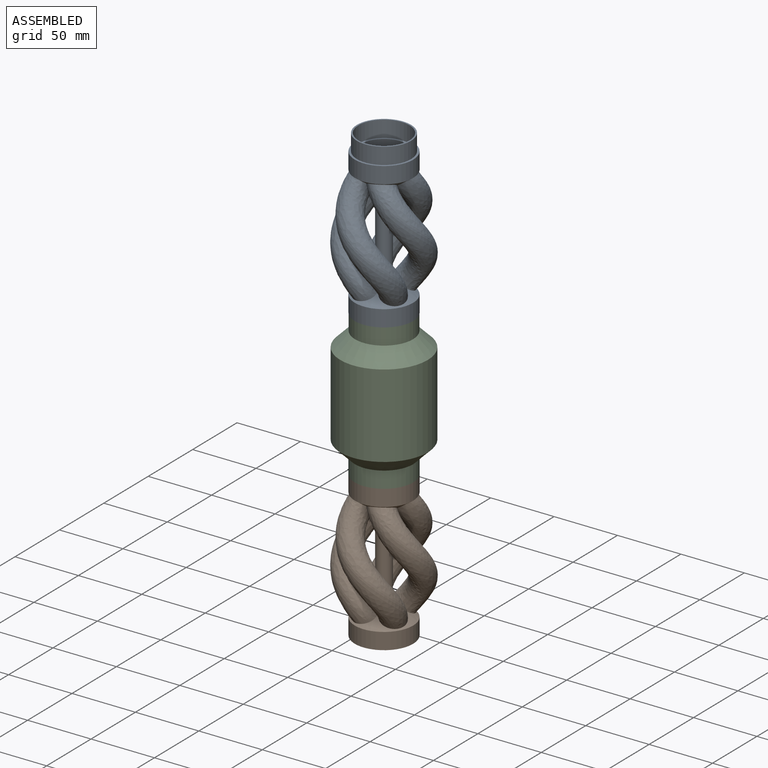
[diagram: assembled view]
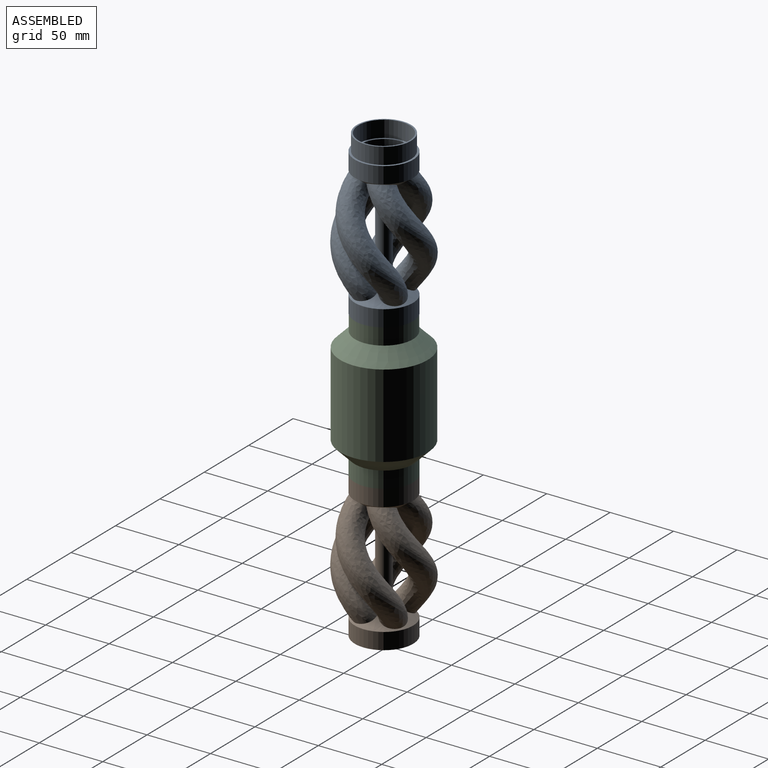
[diagram: assembled view, second angle]
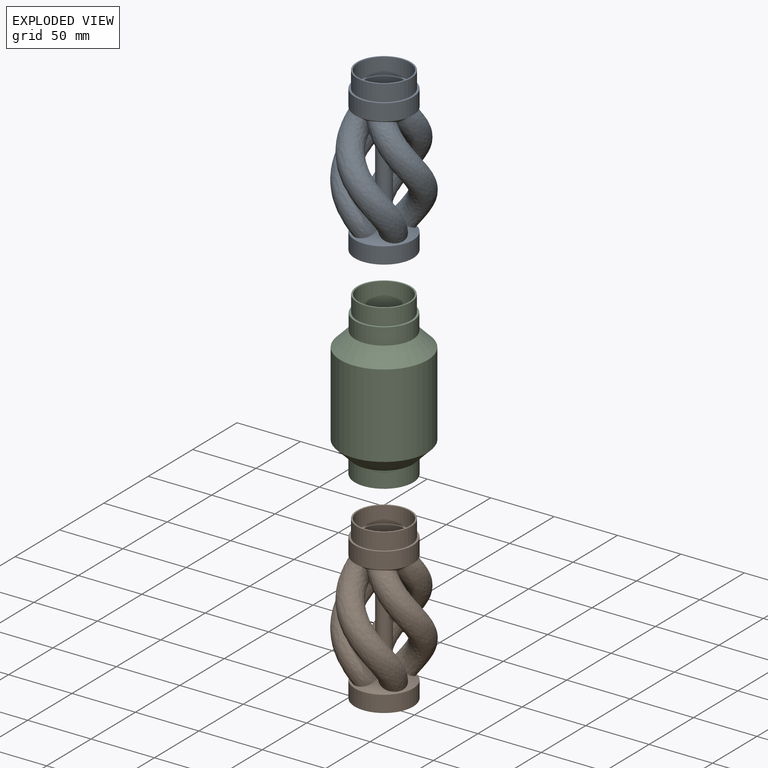
[diagram: exploded view]
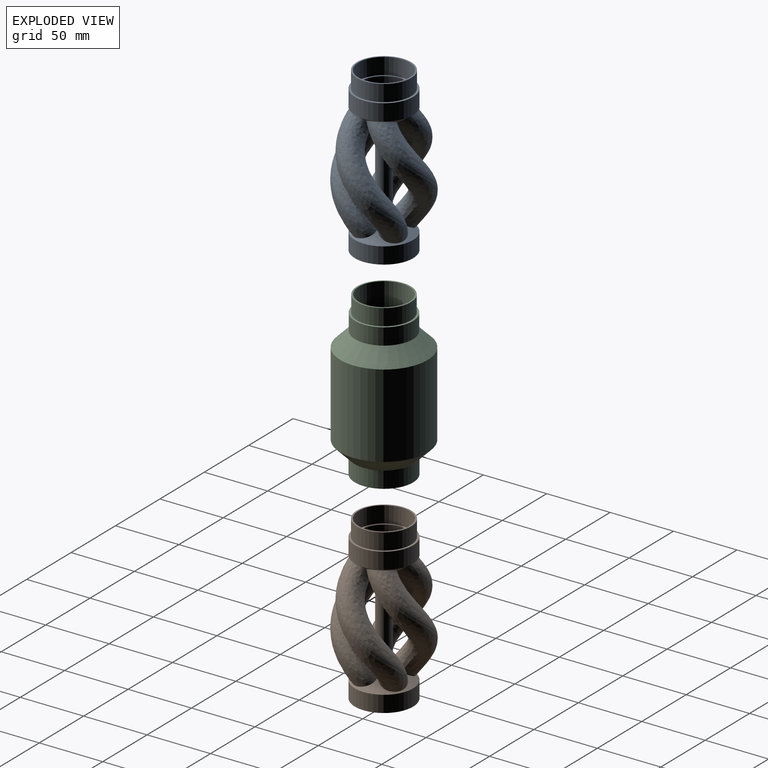
[diagram: exploded view, second angle]
ASSEMBLY  parts=3 mates=2
PART A: 39 faces, bbox 74.5x74.5x129.9 mm
  f0: cylinder r=23mm len=46mm, axis (0,0,-1), area 1878.7mm2, adj f1,f37
  f1: cone r=23mm half-angle=55deg, axis (0,0,-1), area 694.4mm2, adj f0,f2,f33,f34,f35,f36
  f2: bspline ~94.62x46.71mm, area 5847.7mm2, adj f1,f3
  f3: cone r=23mm half-angle=55deg, axis (0,0,1), area 689.9mm2, adj f2,f4,f33,f34,f35,f36
  f4: cylinder r=23mm len=46mm, axis (0,0,-1), area 1878.7mm2, adj f3,f5
  f5: plane 46x46mm, normal (0,0,1), area 229.9mm2, adj f4,f6
  f6: cylinder r=21.35mm len=42.7mm, axis (0,0,-1), area 1743.9mm2, adj f5,f7
  f7: plane 42.7x42.7mm, normal (0,0,1), area 156.5mm2, adj f6,f8
  f8: cylinder r=20.15mm len=40.3mm, axis (0,0,-1), area 1645.9mm2, adj f7,f9
  f9: plane 40.3x40.3mm, normal (0,0,1), area 200.3mm2, adj f8,f10
  f10: cylinder r=18.5mm len=37mm, axis (0,0,-1), area 976.3mm2, adj f9,f11
  f11: cone r=18.5mm half-angle=55deg, axis (0,0,1), area -110.8mm2, adj f10,f12,f26,f27,f28,f29,f30,f31
  f12: bspline ~100.48x42.74mm, area 5137.9mm2, adj f11,f13,f15,f23,f24,f25,f26,f32
  f13: cone r=18.5mm half-angle=55deg, axis (0,0,1), area 95.8mm2, adj f12,f14,f26,f27,f28,f29,f31,f32
  f14: cylinder r=1.25mm len=74.05mm, axis (0,0,-1), area 581.6mm2, adj f13,f24
  f15: cone r=18.5mm half-angle=55deg, axis (0,0,-1), area 302.3mm2, adj f12,f16,f17,f18,f23,f25,f28,f31
  f16: bspline ~23.72x20.38mm, area 19.5mm2, adj f15,f24,f28,f38
  f17: bspline ~33.5x33.5mm, area 21.4mm2, adj f15,f24,f28,f31
  f18: cylinder r=18.5mm len=37mm, axis (0,0,-1), area 976.3mm2, adj f15,f19
  f19: plane 40x40mm, normal (0,0,-1), area 181.4mm2, adj f18,f20
  f20: cylinder r=20mm len=40mm, axis (0,0,-1), area 1633.6mm2, adj f19,f21
  f21: plane 43x43mm, normal (0,0,-1), area 195.6mm2, adj f20,f22
  f22: cylinder r=21.5mm len=43mm, axis (0,0,-1), area 1756.2mm2, adj f21,f37
  f23: bspline ~23.72x20.38mm, area 19.5mm2, adj f12,f15,f24,f38
  f24: cone r=18.5mm half-angle=55deg, axis (0,0,-1), area 92mm2, adj f12,f14,f16,f17,f23,f25,f28,f31
  f25: bspline ~33.5x33.5mm, area 21.4mm2, adj f12,f15,f24,f31
  f26: bspline ~33.5x33.5mm, area 21.4mm2, adj f11,f12,f13,f38
  f27: bspline ~33.5x33.5mm, area 21.4mm2, adj f11,f13,f28,f38
  f28: bspline ~100.61x42.73mm, area 5229.7mm2, adj f11,f13,f15,f16,f17,f24,f27,f29
  f29: bspline ~23.72x20.38mm, area 19.5mm2, adj f11,f13,f28,f31
  f30: bspline ~15.12x14.93mm, area 96.9mm2, adj f11
  f31: bspline ~100.53x42.73mm, area 5196.7mm2, adj f11,f13,f15,f17,f24,f25,f29,f32
  f32: bspline ~23.72x20.38mm, area 19.5mm2, adj f11,f12,f13,f31
  f33: bspline ~94.62x46.71mm, area 5847.7mm2, adj f1,f3
  f34: bspline ~94.62x46.71mm, area 5847.7mm2, adj f1,f3
  f35: cylinder r=5.75mm len=64.84mm, axis (0,0,-1), area 2342.7mm2, adj f1,f3
  f36: bspline ~94.62x46.71mm, area 5847.7mm2, adj f1,f3
  f37: plane 46x46mm, normal (0,0,-1), area 209.7mm2, adj f0,f22
  f38: bspline ~100.59x42.73mm, area 5150.4mm2, adj f11,f13,f15,f16,f23,f24,f26,f27
PART B: same geometry as A
PART C: 206 faces, bbox 69x69x128 mm
  f0: cone r=23mm half-angle=45deg, axis (0,0,1), area 2937.9mm2, adj f2,f201
  f1: cone r=21.5mm half-angle=45deg, axis (0,0,1), area 2354.7mm2, adj f10,f198
  f2: cylinder r=34.5mm len=69mm, axis (0,0,1), area 14274.3mm2, adj f0,f3
  f3: cone r=22.85mm half-angle=45deg, axis (0,0,-1), area 2968.4mm2, adj f2,f4
  f4: cylinder r=22.85mm len=45.7mm, axis (0,0,1), area 1866.4mm2, adj f3,f5
  f5: plane 45.7x45.7mm, normal (0,0,1), area 228.3mm2, adj f4,f6
  f6: cylinder r=21.2mm len=42.4mm, axis (0,0,1), area 1731.6mm2, adj f5,f7
  f7: plane 42.4x42.4mm, normal (0,0,1), area 155.3mm2, adj f6,f8
  f8: cylinder r=20mm len=40mm, axis (0,0,1), area 3267.3mm2, adj f7,f9
  f9: cone r=20mm half-angle=45deg, axis (0,0,-1), area 2631.3mm2, adj f8,f10
  f10: cylinder r=31.5mm len=66mm, axis (0,0,1), area 13062.7mm2, adj f1,f9
  f11: cone r=9.97mm half-angle=45deg, axis (0,0,1), area 119.7mm2, adj f12,f14
  f12: cylinder r=9.97mm len=60.19mm, axis (0,0,1), area 3770.8mm2, adj f11,f13
  f13: cone r=18.06mm half-angle=45deg, axis (0,0,-1), area 1007.4mm2, adj f12,f194
  f14: plane 22.48x22.48mm, normal (0,0,1), area 183.6mm2, adj f11,f15
  f15: cone r=6.97mm half-angle=45deg, axis (0,0,1), area 85.8mm2, adj f14,f16
  f16: cylinder r=6.97mm len=60.19mm, axis (0,0,1), area 2636.3mm2, adj f15,f17
  f17: cone r=17mm half-angle=45deg, axis (0,0,-1), area 1068.1mm2, adj f16,f205
  f18: sphere r=18.06mm, area 2049.3mm2, adj f194
  f19: cylinder r=1.5mm len=4.19mm, axis (0.54,-0.84,0), area 28.3mm2, adj f194,f197
  f20: cylinder r=1.5mm len=4.19mm, axis (0.54,-0.84,0), area 28.3mm2, adj f194,f197
  f21: cylinder r=1.5mm len=4.19mm, axis (0.54,-0.84,0), area 28.3mm2, adj f194,f197
  f22: cylinder r=1.5mm len=4.19mm, axis (0.54,-0.84,0), area 28.3mm2, adj f194,f197
  f23: cylinder r=1.5mm len=4.19mm, axis (0.54,-0.84,0), area 28.3mm2, adj f194,f197
  f24: cylinder r=1.5mm len=4.19mm, axis (0.54,-0.84,0), area 28.3mm2, adj f194,f197
  f25: cylinder r=1.5mm len=4.19mm, axis (0.54,-0.84,0), area 28.3mm2, adj f194,f197
  f26: cylinder r=1.5mm len=4.19mm, axis (0.54,-0.84,0), area 28.3mm2, adj f194,f197
  f27: cylinder r=1.5mm len=4.19mm, axis (0.54,-0.84,0), area 28.3mm2, adj f194,f197
  f28: cylinder r=1.5mm len=4.19mm, axis (0.54,-0.84,0), area 28.3mm2, adj f194,f197
  f29: cylinder r=1.5mm len=3.98mm, axis (-0.38,0.92,0), area 28.3mm2, adj f194,f197
  f30: cylinder r=1.5mm len=3.98mm, axis (-0.38,0.92,0), area 28.3mm2, adj f194,f197
  f31: cylinder r=1.5mm len=3.98mm, axis (-0.38,0.92,0), area 28.3mm2, adj f194,f197
  f32: cylinder r=1.5mm len=3.98mm, axis (-0.38,0.92,0), area 28.3mm2, adj f194,f197
  f33: cylinder r=1.5mm len=3.98mm, axis (-0.38,0.92,0), area 28.3mm2, adj f194,f197
  f34: cylinder r=1.5mm len=3.98mm, axis (-0.38,0.92,0), area 28.3mm2, adj f194,f197
  f35: cylinder r=1.5mm len=3.98mm, axis (-0.38,0.92,0), area 28.3mm2, adj f194,f197
  f36: cylinder r=1.5mm len=3.98mm, axis (-0.38,0.92,0), area 28.3mm2, adj f194,f197
  f37: cylinder r=1.5mm len=3.98mm, axis (-0.38,0.92,0), area 28.3mm2, adj f194,f197
  f38: cylinder r=1.5mm len=3.98mm, axis (-0.38,0.92,0), area 28.3mm2, adj f194,f197
  f39: cylinder r=1.5mm len=3.98mm, axis (-0.38,0.92,0), area 28.3mm2, adj f194,f197
  f40: cylinder r=1.5mm len=3.98mm, axis (-0.38,0.92,0), area 28.3mm2, adj f194,f197
  f41: cylinder r=1.5mm len=4.23mm, axis (0.82,-0.57,0), area 28.3mm2, adj f194,f197
  f42: cylinder r=1.5mm len=4.23mm, axis (0.82,-0.57,0), area 28.3mm2, adj f194,f197
  f43: cylinder r=1.5mm len=4.23mm, axis (0.82,-0.57,0), area 28.3mm2, adj f194,f197
  f44: cylinder r=1.5mm len=4.23mm, axis (0.82,-0.57,0), area 28.3mm2, adj f194,f197
  f45: cylinder r=1.5mm len=4.23mm, axis (0.82,-0.57,0), area 28.3mm2, adj f194,f197
  f46: cylinder r=1.5mm len=4.23mm, axis (0.82,-0.57,0), area 28.3mm2, adj f194,f197
  f47: cylinder r=1.5mm len=4.23mm, axis (0.82,-0.57,0), area 28.3mm2, adj f194,f197
  f48: cylinder r=1.5mm len=4.23mm, axis (0.82,-0.57,0), area 28.3mm2, adj f194,f197
  f49: cylinder r=1.5mm len=4.23mm, axis (0.82,-0.57,0), area 28.3mm2, adj f194,f197
  f50: cylinder r=1.5mm len=4.23mm, axis (0.82,-0.57,0), area 28.3mm2, adj f194,f197
  f51: cylinder r=1.5mm len=4.29mm, axis (-0.71,0.71,0), area 28.3mm2, adj f194,f197
  f52: cylinder r=1.5mm len=4.29mm, axis (-0.71,0.71,0), area 28.3mm2, adj f194,f197
  f53: cylinder r=1.5mm len=4.29mm, axis (-0.71,0.71,0), area 28.3mm2, adj f194,f197
  f54: cylinder r=1.5mm len=4.29mm, axis (-0.71,0.71,0), area 28.3mm2, adj f194,f197
  f55: cylinder r=1.5mm len=4.29mm, axis (-0.71,0.71,0), area 28.3mm2, adj f194,f197
  f56: cylinder r=1.5mm len=4.29mm, axis (-0.71,0.71,0), area 28.3mm2, adj f194,f197
  f57: cylinder r=1.5mm len=4.29mm, axis (-0.71,0.71,0), area 28.3mm2, adj f194,f197
  f58: cylinder r=1.5mm len=4.29mm, axis (-0.71,0.71,0), area 28.3mm2, adj f194,f197
  f59: cylinder r=1.5mm len=4.29mm, axis (-0.71,0.71,0), area 28.3mm2, adj f194,f197
  f60: cylinder r=1.5mm len=4.29mm, axis (-0.71,0.71,0), area 28.3mm2, adj f194,f197
  f61: cylinder r=1.5mm len=4.29mm, axis (-0.71,0.71,0), area 28.3mm2, adj f194,f197
  f62: cylinder r=1.5mm len=4.29mm, axis (-0.71,0.71,0), area 28.3mm2, adj f194,f197
  f63: cylinder r=1.5mm len=3.64mm, axis (0.98,-0.22,0), area 28.3mm2, adj f194,f197
  f64: cylinder r=1.5mm len=3.64mm, axis (0.98,-0.22,0), area 28.3mm2, adj f194,f197
  f65: cylinder r=1.5mm len=3.64mm, axis (0.98,-0.22,0), area 28.3mm2, adj f194,f197
  f66: cylinder r=1.5mm len=3.64mm, axis (0.98,-0.22,0), area 28.3mm2, adj f194,f197
  f67: cylinder r=1.5mm len=3.64mm, axis (0.98,-0.22,0), area 28.3mm2, adj f194,f197
  f68: cylinder r=1.5mm len=3.64mm, axis (0.98,-0.22,0), area 28.3mm2, adj f194,f197
  f69: cylinder r=1.5mm len=3.64mm, axis (0.98,-0.22,0), area 28.3mm2, adj f194,f197
  f70: cylinder r=1.5mm len=3.64mm, axis (0.98,-0.22,0), area 28.3mm2, adj f194,f197
  f71: cylinder r=1.5mm len=3.64mm, axis (0.98,-0.22,0), area 28.3mm2, adj f194,f197
  f72: cylinder r=1.5mm len=3.64mm, axis (0.98,-0.22,0), area 28.3mm2, adj f194,f197
  f73: cylinder r=1.5mm len=3.98mm, axis (-0.92,0.38,0), area 28.3mm2, adj f194,f197
  f74: cylinder r=1.5mm len=3.98mm, axis (-0.92,0.38,0), area 28.3mm2, adj f194,f197
  f75: cylinder r=1.5mm len=3.98mm, axis (-0.92,0.38,0), area 28.3mm2, adj f194,f197
  f76: cylinder r=1.5mm len=3.98mm, axis (-0.92,0.38,0), area 28.3mm2, adj f194,f197
  f77: cylinder r=1.5mm len=3.98mm, axis (-0.92,0.38,0), area 28.3mm2, adj f194,f197
  f78: cylinder r=1.5mm len=3.98mm, axis (-0.92,0.38,0), area 28.3mm2, adj f194,f197
  f79: cylinder r=1.5mm len=3.98mm, axis (-0.92,0.38,0), area 28.3mm2, adj f194,f197
  f80: cylinder r=1.5mm len=3.98mm, axis (-0.92,0.38,0), area 28.3mm2, adj f194,f197
  f81: cylinder r=1.5mm len=3.98mm, axis (-0.92,0.38,0), area 28.3mm2, adj f194,f197
  f82: cylinder r=1.5mm len=3.98mm, axis (-0.92,0.38,0), area 28.3mm2, adj f194,f197
  f83: cylinder r=1.5mm len=3.98mm, axis (-0.92,0.38,0), area 28.3mm2, adj f194,f197
  f84: cylinder r=1.5mm len=3.98mm, axis (-0.92,0.38,0), area 28.3mm2, adj f194,f197
  f85: cylinder r=1.5mm len=3.54mm, axis (0.98,0.17,0), area 28.3mm2, adj f194,f197
  f86: cylinder r=1.5mm len=3.54mm, axis (0.98,0.17,0), area 28.3mm2, adj f194,f197
  f87: cylinder r=1.5mm len=3.54mm, axis (0.98,0.17,0), area 28.3mm2, adj f194,f197
  f88: cylinder r=1.5mm len=3.54mm, axis (0.98,0.17,0), area 28.3mm2, adj f194,f197
  f89: cylinder r=1.5mm len=3.54mm, axis (0.98,0.17,0), area 28.3mm2, adj f194,f197
  f90: cylinder r=1.5mm len=3.54mm, axis (0.98,0.17,0), area 28.3mm2, adj f194,f197
  f91: cylinder r=1.5mm len=3.54mm, axis (0.98,0.17,0), area 28.3mm2, adj f194,f197
  f92: cylinder r=1.5mm len=3.54mm, axis (0.98,0.17,0), area 28.3mm2, adj f194,f197
  f93: cylinder r=1.5mm len=3.54mm, axis (0.98,0.17,0), area 28.3mm2, adj f194,f197
  f94: cylinder r=1.5mm len=3.54mm, axis (0.98,0.17,0), area 28.3mm2, adj f194,f197
  f95: cylinder r=1.5mm len=3.06mm, axis (-1,0,0), area 28.3mm2, adj f194,f197
  f96: cylinder r=1.5mm len=3.06mm, axis (-1,0,0), area 28.3mm2, adj f194,f197
  f97: cylinder r=1.5mm len=3.06mm, axis (-1,0,0), area 28.3mm2, adj f194,f197
  f98: cylinder r=1.5mm len=3.06mm, axis (-1,0,0), area 28.3mm2, adj f194,f197
  f99: cylinder r=1.5mm len=3.06mm, axis (-1,0,0), area 28.3mm2, adj f194,f197
  f100: cylinder r=1.5mm len=3.06mm, axis (-1,0,0), area 28.3mm2, adj f194,f197
  f101: cylinder r=1.5mm len=3.06mm, axis (-1,0,0), area 28.3mm2, adj f194,f197
  f102: cylinder r=1.5mm len=3.06mm, axis (-1,0,0), area 28.3mm2, adj f194,f197
  f103: cylinder r=1.5mm len=3.06mm, axis (-1,0,0), area 28.3mm2, adj f194,f197
  f104: cylinder r=1.5mm len=3.06mm, axis (-1,0,0), area 28.3mm2, adj f194,f197
  f105: cylinder r=1.5mm len=3.06mm, axis (-1,0,0), area 28.3mm2, adj f194,f197
  f106: cylinder r=1.5mm len=3.06mm, axis (-1,0,0), area 28.3mm2, adj f194,f197
  f107: cylinder r=1.5mm len=4.19mm, axis (0.84,0.54,0), area 28.3mm2, adj f194,f197
  f108: cylinder r=1.5mm len=4.19mm, axis (0.84,0.54,0), area 28.3mm2, adj f194,f197
  f109: cylinder r=1.5mm len=4.19mm, axis (0.84,0.54,0), area 28.3mm2, adj f194,f197
  f110: cylinder r=1.5mm len=4.19mm, axis (0.84,0.54,0), area 28.3mm2, adj f194,f197
  f111: cylinder r=1.5mm len=4.19mm, axis (0.84,0.54,0), area 28.3mm2, adj f194,f197
  f112: cylinder r=1.5mm len=4.19mm, axis (0.84,0.54,0), area 28.3mm2, adj f194,f197
  f113: cylinder r=1.5mm len=4.19mm, axis (0.84,0.54,0), area 28.3mm2, adj f194,f197
  f114: cylinder r=1.5mm len=4.19mm, axis (0.84,0.54,0), area 28.3mm2, adj f194,f197
  f115: cylinder r=1.5mm len=4.19mm, axis (0.84,0.54,0), area 28.3mm2, adj f194,f197
  f116: cylinder r=1.5mm len=4.19mm, axis (0.84,0.54,0), area 28.3mm2, adj f194,f197
  f117: cylinder r=1.5mm len=3.98mm, axis (-0.92,-0.38,0), area 28.3mm2, adj f194,f197
  f118: cylinder r=1.5mm len=3.98mm, axis (-0.92,-0.38,0), area 28.3mm2, adj f194,f197
  f119: cylinder r=1.5mm len=3.98mm, axis (-0.92,-0.38,0), area 28.3mm2, adj f194,f197
  f120: cylinder r=1.5mm len=3.98mm, axis (-0.92,-0.38,0), area 28.3mm2, adj f194,f197
  f121: cylinder r=1.5mm len=3.98mm, axis (-0.92,-0.38,0), area 28.3mm2, adj f194,f197
  f122: cylinder r=1.5mm len=3.98mm, axis (-0.92,-0.38,0), area 28.3mm2, adj f194,f197
  f123: cylinder r=1.5mm len=3.98mm, axis (-0.92,-0.38,0), area 28.3mm2, adj f194,f197
  f124: cylinder r=1.5mm len=3.98mm, axis (-0.92,-0.38,0), area 28.3mm2, adj f194,f197
  f125: cylinder r=1.5mm len=3.98mm, axis (-0.92,-0.38,0), area 28.3mm2, adj f194,f197
  f126: cylinder r=1.5mm len=3.98mm, axis (-0.92,-0.38,0), area 28.3mm2, adj f194,f197
  f127: cylinder r=1.5mm len=3.98mm, axis (-0.92,-0.38,0), area 28.3mm2, adj f194,f197
  f128: cylinder r=1.5mm len=3.98mm, axis (-0.92,-0.38,0), area 28.3mm2, adj f194,f197
  f129: cylinder r=1.5mm len=4.23mm, axis (0.57,0.82,0), area 28.3mm2, adj f194,f197
  f130: cylinder r=1.5mm len=4.23mm, axis (0.57,0.82,0), area 28.3mm2, adj f194,f197
  f131: cylinder r=1.5mm len=4.23mm, axis (0.57,0.82,0), area 28.3mm2, adj f194,f197
  f132: cylinder r=1.5mm len=4.23mm, axis (0.57,0.82,0), area 28.3mm2, adj f194,f197
  f133: cylinder r=1.5mm len=4.23mm, axis (0.57,0.82,0), area 28.3mm2, adj f194,f197
  f134: cylinder r=1.5mm len=4.23mm, axis (0.57,0.82,0), area 28.3mm2, adj f194,f197
  f135: cylinder r=1.5mm len=4.23mm, axis (0.57,0.82,0), area 28.3mm2, adj f194,f197
  f136: cylinder r=1.5mm len=4.23mm, axis (0.57,0.82,0), area 28.3mm2, adj f194,f197
  f137: cylinder r=1.5mm len=4.23mm, axis (0.57,0.82,0), area 28.3mm2, adj f194,f197
  f138: cylinder r=1.5mm len=4.23mm, axis (0.57,0.82,0), area 28.3mm2, adj f194,f197
  f139: cylinder r=1.5mm len=4.29mm, axis (-0.71,-0.71,0), area 28.3mm2, adj f194,f197
  f140: cylinder r=1.5mm len=4.29mm, axis (-0.71,-0.71,0), area 28.3mm2, adj f194,f197
  f141: cylinder r=1.5mm len=4.29mm, axis (-0.71,-0.71,0), area 28.3mm2, adj f194,f197
  f142: cylinder r=1.5mm len=4.29mm, axis (-0.71,-0.71,0), area 28.3mm2, adj f194,f197
  f143: cylinder r=1.5mm len=4.29mm, axis (-0.71,-0.71,0), area 28.3mm2, adj f194,f197
  f144: cylinder r=1.5mm len=4.29mm, axis (-0.71,-0.71,0), area 28.3mm2, adj f194,f197
  f145: cylinder r=1.5mm len=4.29mm, axis (-0.71,-0.71,0), area 28.3mm2, adj f194,f197
  f146: cylinder r=1.5mm len=4.29mm, axis (-0.71,-0.71,0), area 28.3mm2, adj f194,f197
  f147: cylinder r=1.5mm len=4.29mm, axis (-0.71,-0.71,0), area 28.3mm2, adj f194,f197
  f148: cylinder r=1.5mm len=4.29mm, axis (-0.71,-0.71,0), area 28.3mm2, adj f194,f197
  f149: cylinder r=1.5mm len=4.29mm, axis (-0.71,-0.71,0), area 28.3mm2, adj f194,f197
  f150: cylinder r=1.5mm len=4.29mm, axis (-0.71,-0.71,0), area 28.3mm2, adj f194,f197
  f151: cylinder r=1.5mm len=3.64mm, axis (0.22,0.98,0), area 28.3mm2, adj f194,f197
  f152: cylinder r=1.5mm len=3.64mm, axis (0.22,0.98,0), area 28.3mm2, adj f194,f197
  f153: cylinder r=1.5mm len=3.64mm, axis (0.22,0.98,0), area 28.3mm2, adj f194,f197
  f154: cylinder r=1.5mm len=3.64mm, axis (0.22,0.98,0), area 28.3mm2, adj f194,f197
  f155: cylinder r=1.5mm len=3.64mm, axis (0.22,0.98,0), area 28.3mm2, adj f194,f197
  f156: cylinder r=1.5mm len=3.64mm, axis (0.22,0.98,0), area 28.3mm2, adj f194,f197
  f157: cylinder r=1.5mm len=3.64mm, axis (0.22,0.98,0), area 28.3mm2, adj f194,f197
  f158: cylinder r=1.5mm len=3.64mm, axis (0.22,0.98,0), area 28.3mm2, adj f194,f197
  f159: cylinder r=1.5mm len=3.64mm, axis (0.22,0.98,0), area 28.3mm2, adj f194,f197
  f160: cylinder r=1.5mm len=3.64mm, axis (0.22,0.98,0), area 28.3mm2, adj f194,f197
  f161: cylinder r=1.5mm len=3.98mm, axis (-0.38,-0.92,0), area 28.3mm2, adj f194,f197
  f162: cylinder r=1.5mm len=3.98mm, axis (-0.38,-0.92,0), area 28.3mm2, adj f194,f197
  f163: cylinder r=1.5mm len=3.98mm, axis (-0.38,-0.92,0), area 28.3mm2, adj f194,f197
  f164: cylinder r=1.5mm len=3.98mm, axis (-0.38,-0.92,0), area 28.3mm2, adj f194,f197
  f165: cylinder r=1.5mm len=3.98mm, axis (-0.38,-0.92,0), area 28.3mm2, adj f194,f197
  f166: cylinder r=1.5mm len=3.98mm, axis (-0.38,-0.92,0), area 28.3mm2, adj f194,f197
  f167: cylinder r=1.5mm len=3.98mm, axis (-0.38,-0.92,0), area 28.3mm2, adj f194,f197
  f168: cylinder r=1.5mm len=3.98mm, axis (-0.38,-0.92,0), area 28.3mm2, adj f194,f197
  f169: cylinder r=1.5mm len=3.98mm, axis (-0.38,-0.92,0), area 28.3mm2, adj f194,f197
  f170: cylinder r=1.5mm len=3.98mm, axis (-0.38,-0.92,0), area 28.3mm2, adj f194,f197
  f171: cylinder r=1.5mm len=3.98mm, axis (-0.38,-0.92,0), area 28.3mm2, adj f194,f197
  f172: cylinder r=1.5mm len=3.98mm, axis (-0.38,-0.92,0), area 28.3mm2, adj f194,f197
  f173: cylinder r=1.5mm len=3.54mm, axis (-0.17,0.98,0), area 28.3mm2, adj f194,f197
  f174: cylinder r=1.5mm len=3.54mm, axis (-0.17,0.98,0), area 28.3mm2, adj f194,f197
  f175: cylinder r=1.5mm len=3.54mm, axis (-0.17,0.98,0), area 28.3mm2, adj f194,f197
  f176: cylinder r=1.5mm len=3.54mm, axis (-0.17,0.98,0), area 28.3mm2, adj f194,f197
  f177: cylinder r=1.5mm len=3.54mm, axis (-0.17,0.98,0), area 28.3mm2, adj f194,f197
  f178: cylinder r=1.5mm len=3.54mm, axis (-0.17,0.98,0), area 28.3mm2, adj f194,f197
  f179: cylinder r=1.5mm len=3.54mm, axis (-0.17,0.98,0), area 28.3mm2, adj f194,f197
  f180: cylinder r=1.5mm len=3.54mm, axis (-0.17,0.98,0), area 28.3mm2, adj f194,f197
  f181: cylinder r=1.5mm len=3.54mm, axis (-0.17,0.98,0), area 28.3mm2, adj f194,f197
  f182: cylinder r=1.5mm len=3.54mm, axis (-0.17,0.98,0), area 28.3mm2, adj f194,f197
  f183: cylinder r=1.5mm len=3.06mm, axis (0,-1,0), area 28.3mm2, adj f194,f197
  f184: cylinder r=1.5mm len=3.06mm, axis (0,-1,0), area 28.3mm2, adj f194,f197
  f185: cylinder r=1.5mm len=3.06mm, axis (0,-1,0), area 28.3mm2, adj f194,f197
  f186: cylinder r=1.5mm len=3.06mm, axis (0,-1,0), area 28.3mm2, adj f194,f197
  f187: cylinder r=1.5mm len=3.06mm, axis (0,-1,0), area 28.3mm2, adj f194,f197
  f188: cylinder r=1.5mm len=3.06mm, axis (0,-1,0), area 28.3mm2, adj f194,f197
  f189: cylinder r=1.5mm len=3.06mm, axis (0,-1,0), area 28.3mm2, adj f194,f197
  f190: cylinder r=1.5mm len=3.06mm, axis (0,-1,0), area 28.3mm2, adj f194,f197
  f191: cylinder r=1.5mm len=3.06mm, axis (0,-1,0), area 28.3mm2, adj f194,f197
  f192: cylinder r=1.5mm len=3.06mm, axis (0,-1,0), area 28.3mm2, adj f194,f197
  f193: cylinder r=1.5mm len=3.06mm, axis (0,-1,0), area 28.3mm2, adj f194,f197
  f194: cylinder r=18.06mm len=69.54mm, axis (0,0,1), area 6646.4mm2, adj f13,f18,f19,f20,f21,f22,f23,f24
  f195: cylinder r=1.5mm len=3.06mm, axis (0,-1,0), area 28.3mm2, adj f194,f197
  f196: sphere r=21.06mm, area 2786.7mm2, adj f197
  f197: cylinder r=21.06mm len=72.54mm, axis (0,0,1), area 8354.7mm2, adj f19,f20,f21,f22,f23,f24,f25,f26
  f198: cone r=21.5mm half-angle=45deg, axis (0,0,-1), area 83.2mm2, adj f1,f197
  f199: cylinder r=21.5mm len=43mm, axis (0,0,1), area 1756.2mm2, adj f200,f202
  f200: plane 46x46mm, normal (0,0,-1), area 209.7mm2, adj f199,f201
  f201: cylinder r=23mm len=46mm, axis (0,0,1), area 1878.7mm2, adj f0,f200
  f202: plane 43x43mm, normal (0,0,-1), area 195.6mm2, adj f199,f203
  f203: cylinder r=20mm len=40mm, axis (0,0,1), area 1633.6mm2, adj f202,f204
  f204: plane 40x40mm, normal (0,0,-1), area 348.7mm2, adj f203,f205
  f205: cylinder r=17mm len=34mm, axis (0,0,1), area 1709mm2, adj f17,f204
PLACE A t=(-74.01,0,175.13)mm
PLACE B t=(-74.01,0,-54.87)mm
PLACE C t=(-74.01,0,73.16)mm
MATE revolute A.f0 <-> C.f0  axis (0,0,-1) through (-74.01,0,162.13)mm
MATE revolute C.f0 <-> B.f0  axis (0,0,-1) through (-74.01,0,47.13)mm
